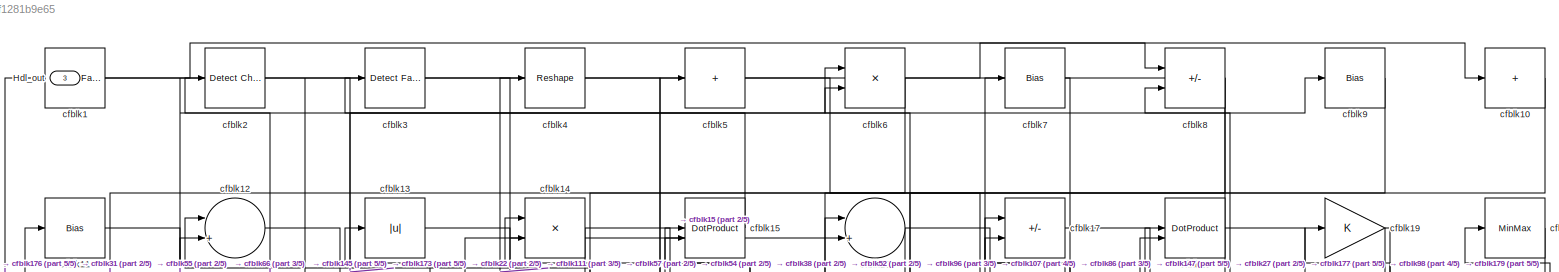
[diagram: root canvas - part 1/5, full width, top band]
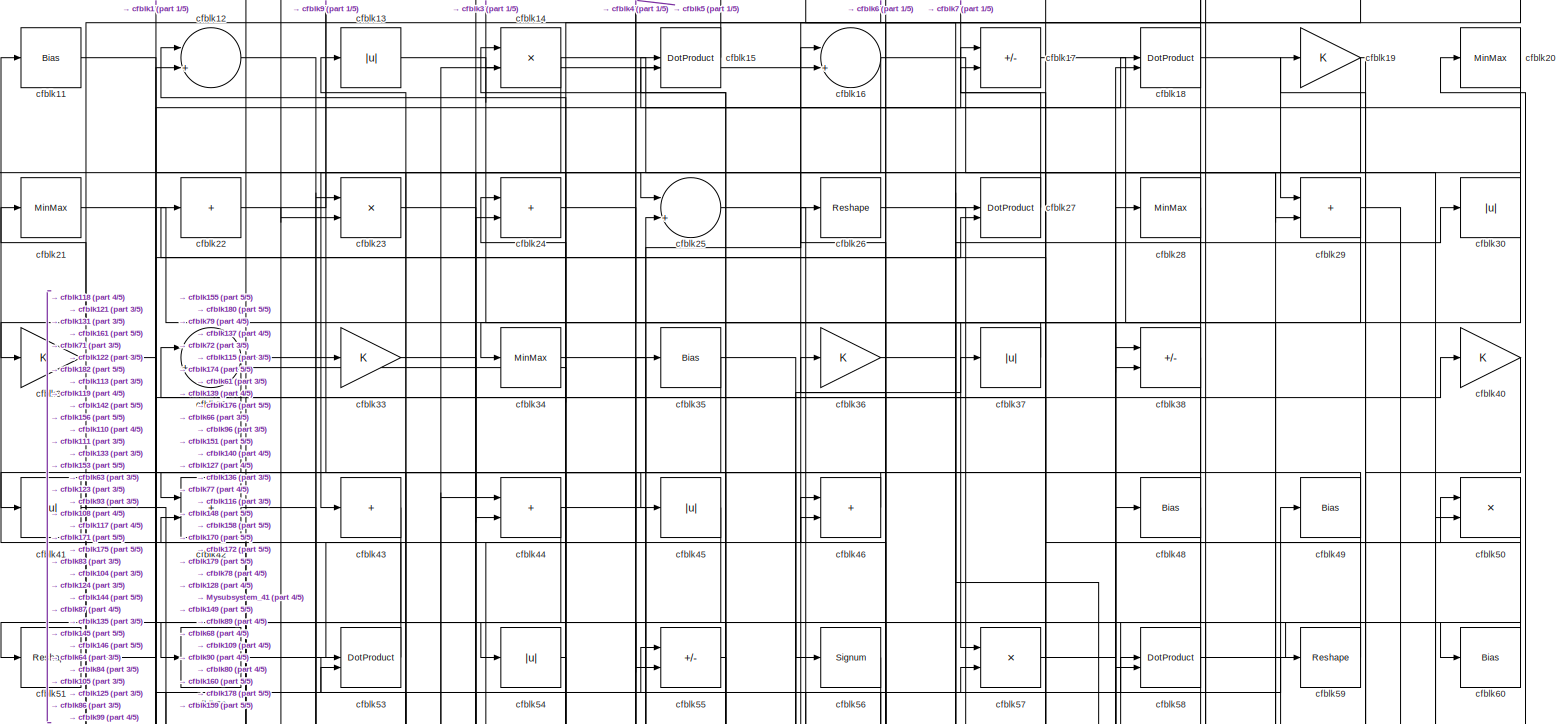
[diagram: root canvas - part 2/5, full width, top band]
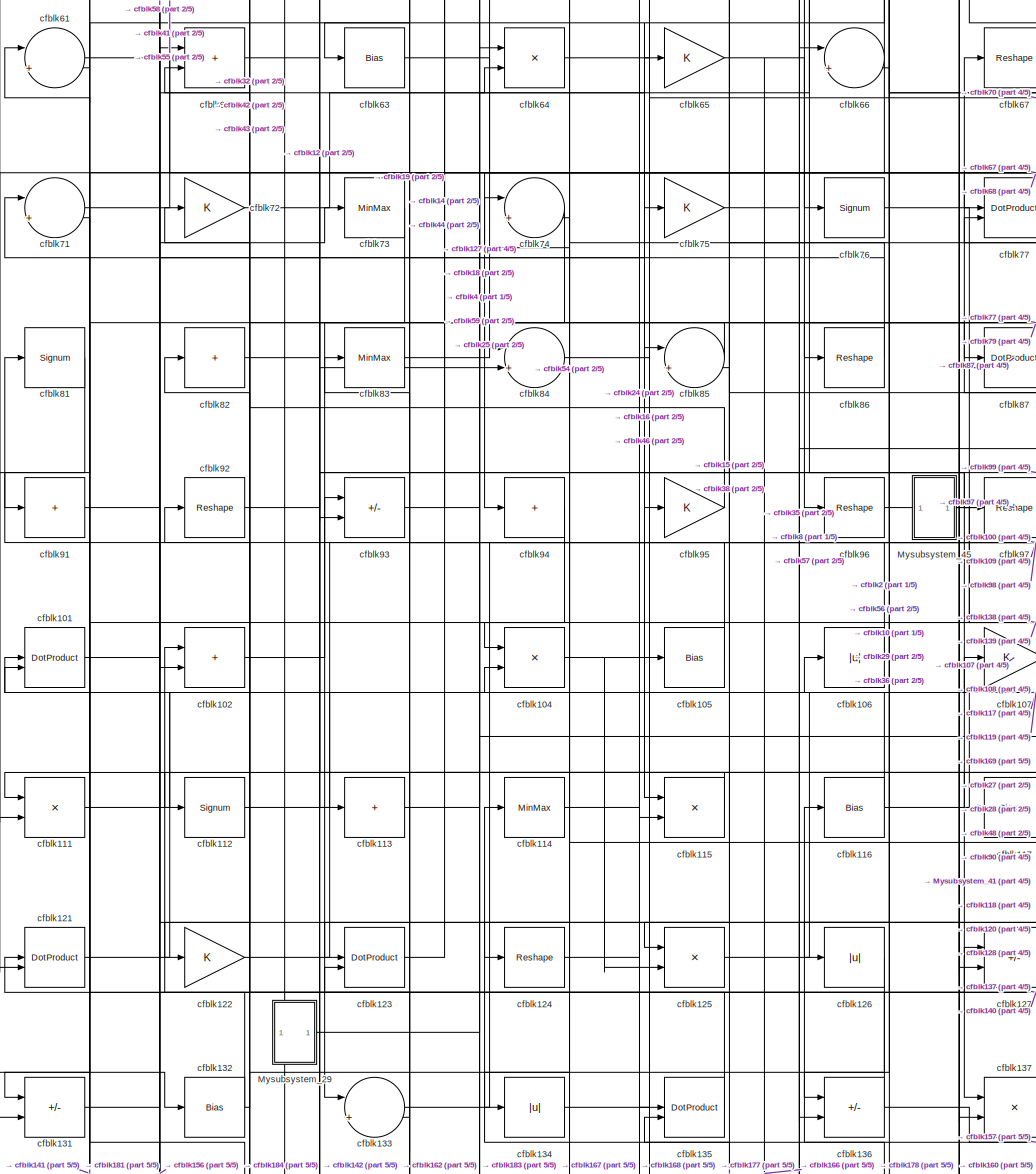
[diagram: root canvas - part 3/5, central region]
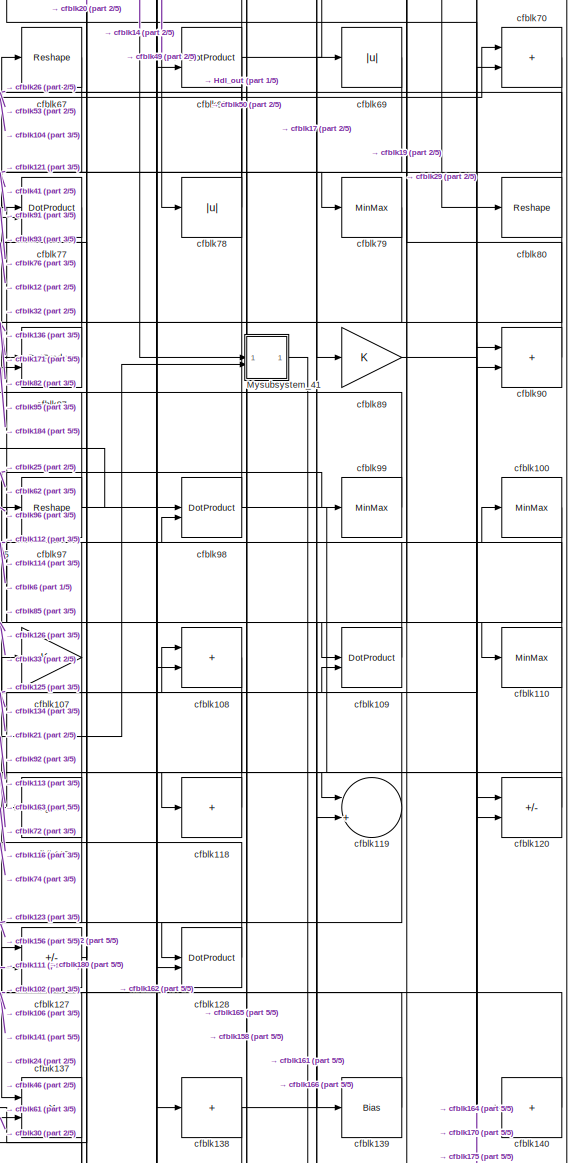
[diagram: root canvas - part 4/5, middle right region]
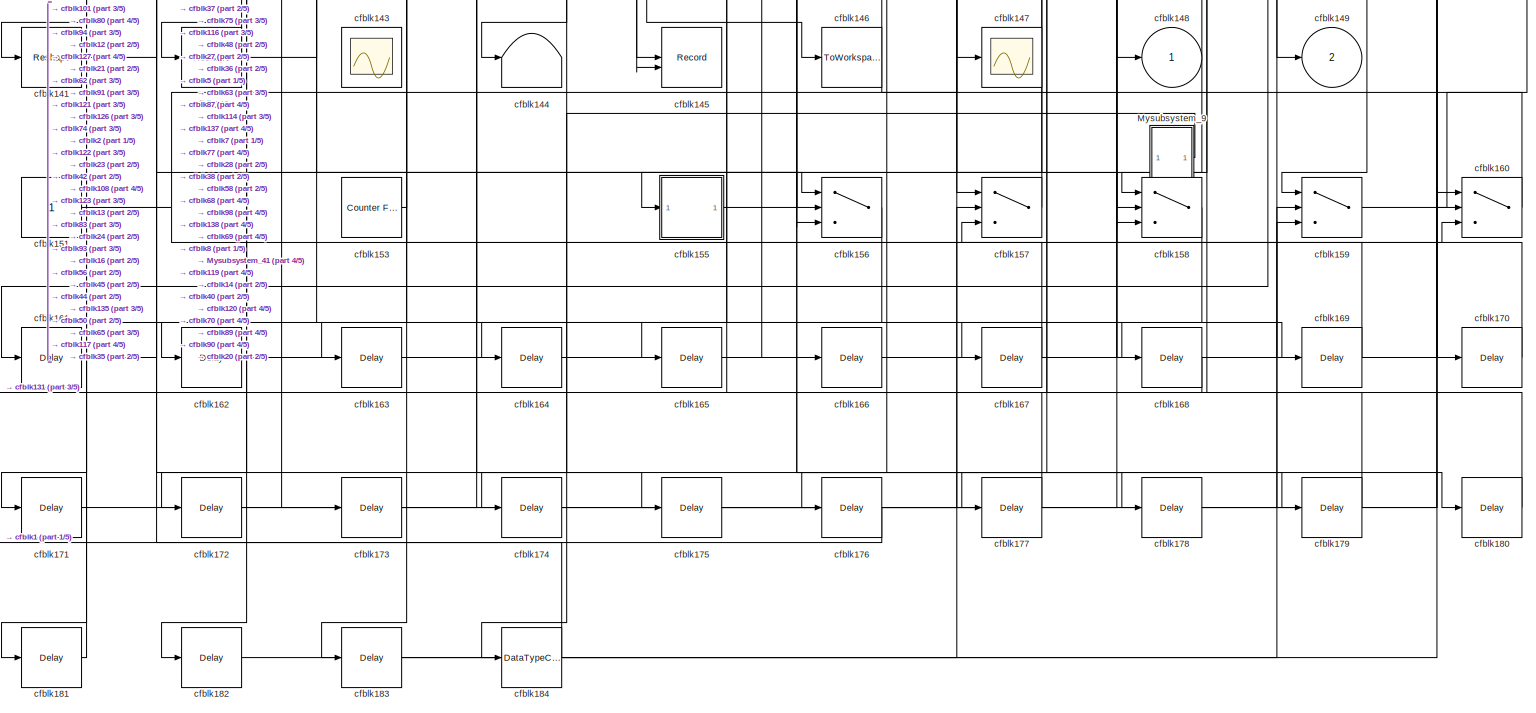
[diagram: root canvas - part 5/5, full width, bottom band]
MODEL slx_b7f1281b9e65
KIND model
CONFIG AbsTol = auto
CONFIG EnableMultiTasking = off
CONFIG FixedStep = auto
CONFIG MaxStep = auto
CONFIG MinStep = auto
CONFIG RelTol = 1e-3
CONFIG SampleTimeConstraint = Unconstrained
CONFIG SolverName = VariableStepAuto
CONFIG StartTime = 0.0
CONFIG StopTime = 10.0
BLOCK [Outport] Hdl_out
  OutDataTypeStr = uint8
  Port = 3
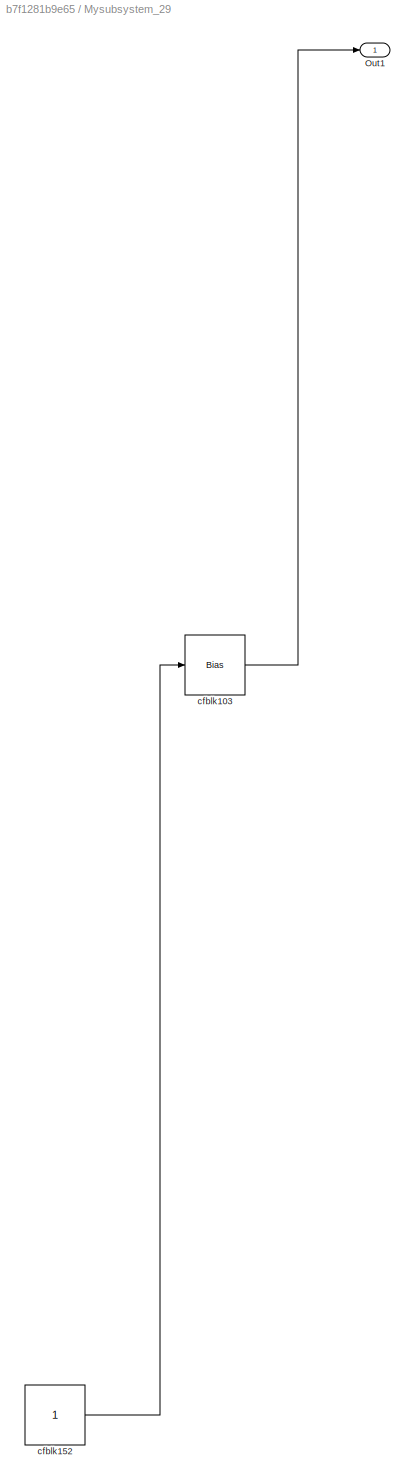
BLOCK [SubSystem] Mysubsystem_29
  RTWFcnName = Mysubsystem_29
  RTWFcnNameOpts = User specified
  RTWFileNameOpts = Use function name
  RTWSystemCode = Reusable function
  TreatAsAtomicUnit = on
BLOCK [Outport] Mysubsystem_29/Out1
BLOCK [Bias] Mysubsystem_29/cfblk103
  Bias = 0.0
  SaturateOnIntegerOverflow = off
BLOCK [Constant] Mysubsystem_29/cfblk152
  SampleTime = -1
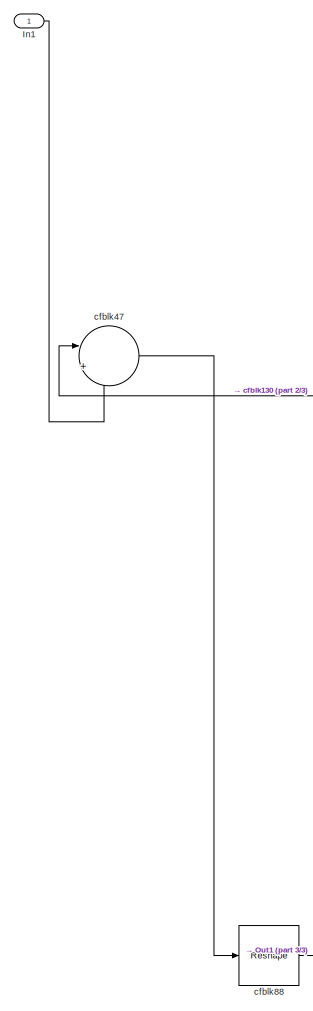
[diagram: Mysubsystem_41 - part 1/3, top right region]
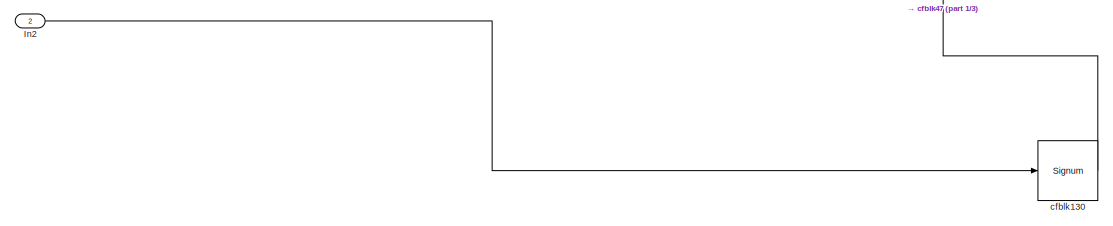
[diagram: Mysubsystem_41 - part 2/3, bottom center region]
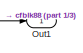
[diagram: Mysubsystem_41 - part 3/3, bottom left region]
BLOCK [SubSystem] Mysubsystem_41
  RTWFcnName = Mysubsystem_41
  RTWFcnNameOpts = User specified
  RTWFileNameOpts = Use function name
  RTWSystemCode = Reusable function
  TreatAsAtomicUnit = on
BLOCK [Inport] Mysubsystem_41/In1
BLOCK [Inport] Mysubsystem_41/In2
  Port = 2
BLOCK [Outport] Mysubsystem_41/Out1
BLOCK [Signum] Mysubsystem_41/cfblk130
BLOCK [Sum] Mysubsystem_41/cfblk47
  Inputs = |++
BLOCK [Reshape] Mysubsystem_41/cfblk88
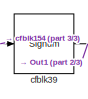
[diagram: Mysubsystem_45 - part 1/3, top right region]
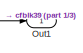
[diagram: Mysubsystem_45 - part 2/3, bottom center region]
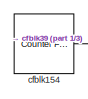
[diagram: Mysubsystem_45 - part 3/3, bottom left region]
BLOCK [SubSystem] Mysubsystem_45
  RTWFcnName = Mysubsystem_45
  RTWFcnNameOpts = User specified
  RTWFileNameOpts = Use function name
  RTWSystemCode = Reusable function
  TreatAsAtomicUnit = on
BLOCK [Outport] Mysubsystem_45/Out1
BLOCK [Reference] Mysubsystem_45/cfblk154  REF=hdlsllib/Sources/Counter
Free-Running
  SourceBlock = hdlsllib/Sources/Counter\nFree-Running
  SourceType = Counter Free-Running
BLOCK [Signum] Mysubsystem_45/cfblk39
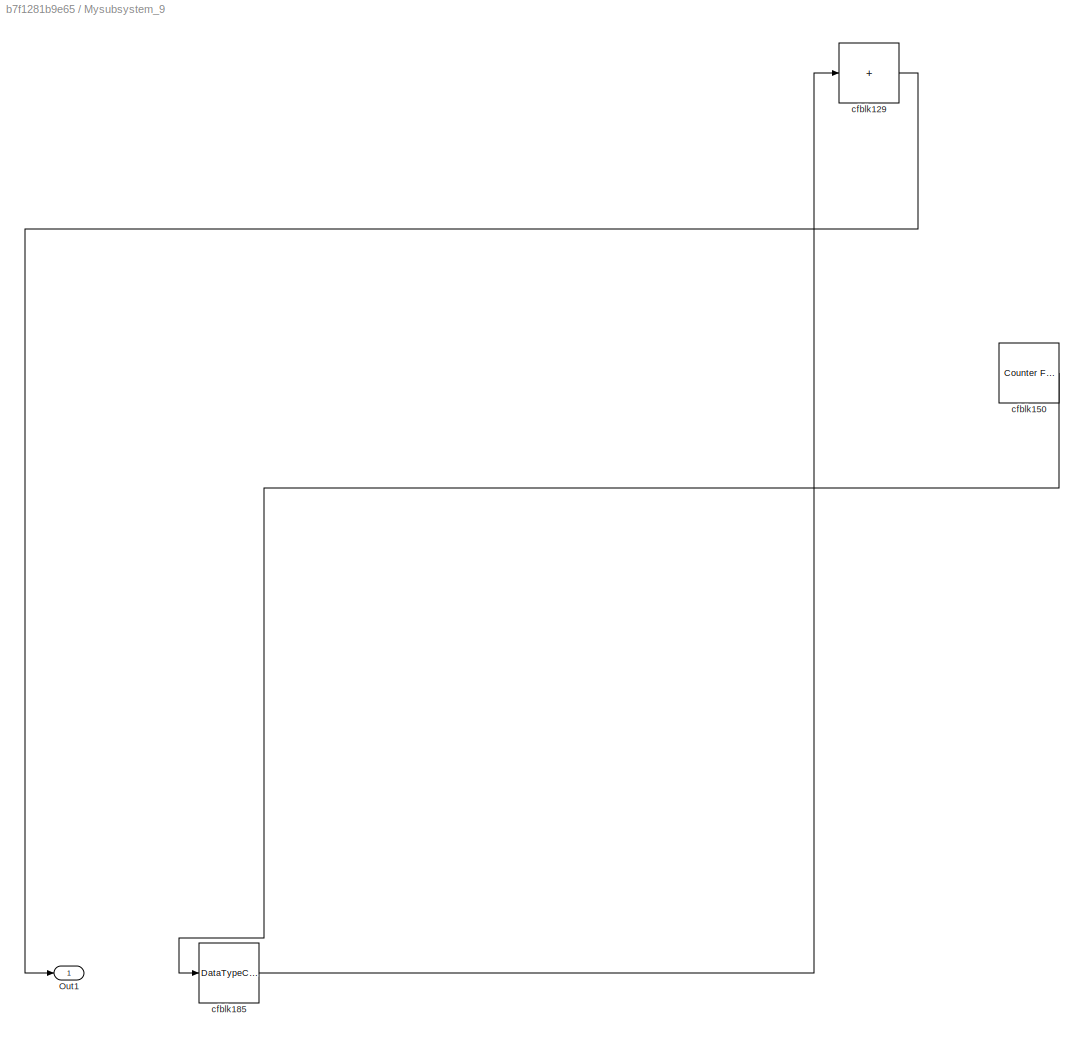
BLOCK [SubSystem] Mysubsystem_9
  RTWFcnName = Mysubsystem_9
  RTWFcnNameOpts = User specified
  RTWFileNameOpts = Use function name
  RTWSystemCode = Reusable function
  TreatAsAtomicUnit = on
BLOCK [Outport] Mysubsystem_9/Out1
BLOCK [Sum] Mysubsystem_9/cfblk129
  IconShape = rectangular
  Inputs = +
BLOCK [Reference] Mysubsystem_9/cfblk150  REF=hdlsllib/Sources/Counter
Free-Running
  SourceBlock = hdlsllib/Sources/Counter\nFree-Running
  SourceType = Counter Free-Running
BLOCK [DataTypeConversion] Mysubsystem_9/cfblk185
  OutDataTypeStr = uint8
  RndMeth = Floor
  SaturateOnIntegerOverflow = off
BLOCK [Reference] cfblk1  REF=hdlsllib/Logic and Bit
Operations/Detect Fall
Negative
  SourceBlock = hdlsllib/Logic and Bit\nOperations/Detect Fall\nNegative
  SourceType = Detect Fall Negative
BLOCK [Sum] cfblk10
  IconShape = rectangular
  Inputs = +
  OutDataTypeStr = uint8
BLOCK [MinMax] cfblk100
  OutDataTypeStr = uint8
BLOCK [DotProduct] cfblk101
  OutDataTypeStr = uint8
BLOCK [Sum] cfblk102
  IconShape = rectangular
  OutDataTypeStr = uint8
BLOCK [Product] cfblk104
  Inputs = */
  OutDataTypeStr = uint8
  RndMeth = Zero
  SaturateOnIntegerOverflow = on
BLOCK [Bias] cfblk105
  Bias = 0.0
  SaturateOnIntegerOverflow = off
BLOCK [Abs] cfblk106
  OutDataTypeStr = uint8
  SaturateOnIntegerOverflow = off
BLOCK [Gain] cfblk107
  OutDataTypeStr = uint8
BLOCK [Sum] cfblk108
  IconShape = rectangular
  OutDataTypeStr = uint8
BLOCK [DotProduct] cfblk109
  OutDataTypeStr = uint8
BLOCK [Bias] cfblk11
  Bias = 0.0
  SaturateOnIntegerOverflow = off
BLOCK [MinMax] cfblk110
  OutDataTypeStr = uint8
BLOCK [Product] cfblk111
  Inputs = */
  OutDataTypeStr = uint8
  RndMeth = Zero
  SaturateOnIntegerOverflow = on
BLOCK [Signum] cfblk112
BLOCK [Sum] cfblk113
  IconShape = rectangular
  Inputs = +
  OutDataTypeStr = uint8
BLOCK [MinMax] cfblk114
  OutDataTypeStr = uint8
BLOCK [Product] cfblk115
  Inputs = */
  OutDataTypeStr = uint8
  RndMeth = Zero
  SaturateOnIntegerOverflow = on
BLOCK [Bias] cfblk116
  Bias = 0.0
  SaturateOnIntegerOverflow = off
BLOCK [Signum] cfblk117
BLOCK [Sum] cfblk118
  IconShape = rectangular
  Inputs = +
  OutDataTypeStr = uint8
BLOCK [Sum] cfblk119
  Inputs = |++
  OutDataTypeStr = uint8
BLOCK [Sum] cfblk12
  Inputs = |++
  OutDataTypeStr = uint8
BLOCK [Sum] cfblk120
  IconShape = rectangular
  Inputs = +-
  OutDataTypeStr = uint8
BLOCK [DotProduct] cfblk121
  OutDataTypeStr = uint8
BLOCK [Gain] cfblk122
  OutDataTypeStr = uint8
BLOCK [DotProduct] cfblk123
  OutDataTypeStr = uint8
BLOCK [Reshape] cfblk124
BLOCK [Product] cfblk125
  Inputs = */
  OutDataTypeStr = uint8
  RndMeth = Zero
  SaturateOnIntegerOverflow = on
BLOCK [Abs] cfblk126
  OutDataTypeStr = uint8
  SaturateOnIntegerOverflow = off
BLOCK [Sum] cfblk127
  IconShape = rectangular
  Inputs = +-
  OutDataTypeStr = uint8
BLOCK [DotProduct] cfblk128
  OutDataTypeStr = uint8
BLOCK [Abs] cfblk13
  OutDataTypeStr = uint8
  SaturateOnIntegerOverflow = off
BLOCK [Sum] cfblk131
  IconShape = rectangular
  Inputs = +-
  OutDataTypeStr = uint8
BLOCK [Bias] cfblk132
  Bias = 0.0
  SaturateOnIntegerOverflow = off
BLOCK [Sum] cfblk133
  Inputs = |++
  OutDataTypeStr = uint8
BLOCK [Abs] cfblk134
  OutDataTypeStr = uint8
  SaturateOnIntegerOverflow = off
BLOCK [DotProduct] cfblk135
  OutDataTypeStr = uint8
BLOCK [Sum] cfblk136
  IconShape = rectangular
  Inputs = +-
  OutDataTypeStr = uint8
BLOCK [Product] cfblk137
  Inputs = */
  OutDataTypeStr = uint8
  RndMeth = Zero
  SaturateOnIntegerOverflow = on
BLOCK [Sum] cfblk138
  IconShape = rectangular
  Inputs = +
  OutDataTypeStr = uint8
BLOCK [Bias] cfblk139
  Bias = 0.0
  SaturateOnIntegerOverflow = off
BLOCK [Product] cfblk14
  Inputs = */
  OutDataTypeStr = uint8
  RndMeth = Zero
  SaturateOnIntegerOverflow = on
BLOCK [Sum] cfblk140
  IconShape = rectangular
  Inputs = +
  OutDataTypeStr = uint8
BLOCK [Reshape] cfblk141
BLOCK [Reshape] cfblk142
BLOCK [Scope] cfblk143
  Floating = on
  NumInputPorts = 1
  ScopeSpecificationString = Simulink.scopes.TimeScopeBlockCfg('CurrentConfiguration', extmgr.ConfigurationSet(extmgr.Configuration('Core','General UI',true,'FigureColor',[0.156862745098039 0.156862745098039 0.156862745098039]),extmgr.Configuration('Core','Source UI',true),extmgr.Configuration('Sources','WiredSimulink',true,'DataLoggingVariableName','ScopeData1','DataLoggingSaveFormat','StructureWithTime','DataLoggingLimitDat...<+2713ch>
BLOCK [Terminator] cfblk144
BLOCK [Record] cfblk145
  CompatibilityTag = XY
  FileSettingsInternal = {"entries":[{"content":{"excelSettings":{"content":{},"type":"Streamout.ExcelSettings"}},"type":"Streamout.FileSettingStorage","uuid":""}],"packageUris":["http:\/\/schema.mathworks.com\/mf0\/streamout_blocks\/R2020a"],"version":"1.0"}
  Layout = [1 1]
  SignalsInternal = {"entries":[{"content":{"signals":[{"content":{"blockPath":[],"dimensions":[1],"domain":"","lineColor":"#a2142f","plots":[1],"port":1,"signalID":57290,"signalName":"cfblk2"},"type":"RecordBlkView.Signal","uuid":""},{"content":{"blockPath":[],"dimensions":[1],"domain":"","lineColor":"#139fff","plots":[1],"port":2,"signalID":57293,"signalName":"cfblk45"},"type":"RecordBlkView.Signal","uuid":""}]},"t...<+141ch>
  VisualizationBindings = {"xyplotplugin":{"info":[{"series":[{"bindingParametersList":[{"parameter":"X-Axis","signalID":57290,"signalName":"cfblk2"},{"parameter":"Y-Axis","signalID":57293,"signalName":"cfblk45"}],"seriesID":59070}],"subplotID":1}]}}
  st = -1
BLOCK [ToWorkspace] cfblk146
  MaxDataPoints = inf
  SampleTime = -1
  SaveFormat = Timeseries
  VariableName = simout
BLOCK [Scope] cfblk147
  Floating = off
  NumInputPorts = 1
  ScopeSpecificationString = Simulink.scopes.TimeScopeBlockCfg('CurrentConfiguration', extmgr.ConfigurationSet(extmgr.Configuration('Core','General UI',true),extmgr.Configuration('Core','Source UI',true),extmgr.Configuration('Sources','WiredSimulink',true,'DataLoggingVariableName','ScopeData2','DataLoggingSaveFormat','Array','DataLoggingLimitDataPoints',true,'DataLoggingDecimation','1'),extmgr.Configuration('Visuals','Time Do...<+868ch>
BLOCK [Outport] cfblk148
  OutDataTypeStr = uint8
  VectorParamsAs1DForOutWhenUnconnected = off
BLOCK [Outport] cfblk149
  OutDataTypeStr = uint8
  Port = 2
  VectorParamsAs1DForOutWhenUnconnected = off
BLOCK [DotProduct] cfblk15
  OutDataTypeStr = uint8
BLOCK [Constant] cfblk151
  OutDataTypeStr = uint8
  SampleTime = -1
BLOCK [Reference] cfblk153  REF=hdlsllib/Sources/Counter
Free-Running
  SourceBlock = hdlsllib/Sources/Counter\nFree-Running
  SourceType = Counter Free-Running
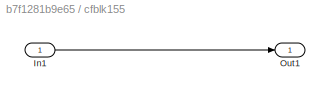
BLOCK [SubSystem] cfblk155
  LibrarySourceBlock = hdlsllib/Ports &\nSubsystems/Subsystem
BLOCK [Inport] cfblk155/In1
BLOCK [Outport] cfblk155/Out1
BLOCK [Switch] cfblk156
  InputSameDT = off
  OutDataTypeStr = uint8
  SaturateOnIntegerOverflow = off
BLOCK [Switch] cfblk157
  InputSameDT = off
  OutDataTypeStr = uint8
  SaturateOnIntegerOverflow = off
BLOCK [Switch] cfblk158
  InputSameDT = off
  OutDataTypeStr = uint8
  SaturateOnIntegerOverflow = off
BLOCK [Switch] cfblk159
  InputSameDT = off
  OutDataTypeStr = uint8
  SaturateOnIntegerOverflow = off
BLOCK [Sum] cfblk16
  Inputs = |++
  OutDataTypeStr = uint8
BLOCK [Switch] cfblk160
  InputSameDT = off
  OutDataTypeStr = uint8
  SaturateOnIntegerOverflow = off
BLOCK [Delay] cfblk161
  InputPortMap = u0
  SampleTime = 1
BLOCK [Delay] cfblk162
  InputPortMap = u0
  SampleTime = 1
BLOCK [Delay] cfblk163
  InputPortMap = u0
  SampleTime = 1
BLOCK [Delay] cfblk164
  InputPortMap = u0
  SampleTime = 1
BLOCK [Delay] cfblk165
  InputPortMap = u0
  SampleTime = 1
BLOCK [Delay] cfblk166
  InputPortMap = u0
  SampleTime = 1
BLOCK [Delay] cfblk167
  InputPortMap = u0
  SampleTime = 1
BLOCK [Delay] cfblk168
  InputPortMap = u0
  SampleTime = 1
BLOCK [Delay] cfblk169
  InputPortMap = u0
  SampleTime = 1
BLOCK [Sum] cfblk17
  IconShape = rectangular
  Inputs = +-
  OutDataTypeStr = uint8
BLOCK [Delay] cfblk170
  InputPortMap = u0
  SampleTime = 1
BLOCK [Delay] cfblk171
  InputPortMap = u0
  SampleTime = 1
BLOCK [Delay] cfblk172
  InputPortMap = u0
  SampleTime = 1
BLOCK [Delay] cfblk173
  InputPortMap = u0
  SampleTime = 1
BLOCK [Delay] cfblk174
  InputPortMap = u0
  SampleTime = 1
BLOCK [Delay] cfblk175
  InputPortMap = u0
  SampleTime = 1
BLOCK [Delay] cfblk176
  InputPortMap = u0
  SampleTime = 1
BLOCK [Delay] cfblk177
  InputPortMap = u0
  SampleTime = 1
BLOCK [Delay] cfblk178
  InputPortMap = u0
  SampleTime = 1
BLOCK [Delay] cfblk179
  InputPortMap = u0
  SampleTime = 1
BLOCK [DotProduct] cfblk18
  OutDataTypeStr = uint8
BLOCK [Delay] cfblk180
  InputPortMap = u0
  SampleTime = 1
BLOCK [Delay] cfblk181
  InputPortMap = u0
  SampleTime = 1
BLOCK [Delay] cfblk182
  InputPortMap = u0
  SampleTime = 1
BLOCK [Delay] cfblk183
  InputPortMap = u0
  SampleTime = 1
BLOCK [DataTypeConversion] cfblk184
  OutDataTypeStr = uint8
  RndMeth = Floor
  SaturateOnIntegerOverflow = off
BLOCK [Gain] cfblk19
  OutDataTypeStr = uint8
BLOCK [Reference] cfblk2  REF=simulink/Logic and Bit
Operations/Detect
Change
  LibrarySourceBlock = hdlsllib/Logic and Bit\nOperations/Detect\nChange
  SourceBlock = simulink/Logic and Bit\nOperations/Detect\nChange
  SourceType = Detect Change
BLOCK [MinMax] cfblk20
  OutDataTypeStr = uint8
BLOCK [MinMax] cfblk21
  OutDataTypeStr = uint8
BLOCK [Sum] cfblk22
  IconShape = rectangular
  Inputs = +
  OutDataTypeStr = uint8
BLOCK [Product] cfblk23
  Inputs = */
  OutDataTypeStr = uint8
  RndMeth = Zero
  SaturateOnIntegerOverflow = on
BLOCK [Sum] cfblk24
  IconShape = rectangular
  OutDataTypeStr = uint8
BLOCK [Sum] cfblk25
  Inputs = |++
  OutDataTypeStr = uint8
BLOCK [Reshape] cfblk26
BLOCK [DotProduct] cfblk27
  OutDataTypeStr = uint8
BLOCK [MinMax] cfblk28
  OutDataTypeStr = uint8
BLOCK [Sum] cfblk29
  IconShape = rectangular
  OutDataTypeStr = uint8
BLOCK [Reference] cfblk3  REF=hdlsllib/Logic and Bit
Operations/Detect Fall
Nonpositive
  SourceBlock = hdlsllib/Logic and Bit\nOperations/Detect Fall\nNonpositive
  SourceType = Detect Fall Nonpositive
BLOCK [Abs] cfblk30
  OutDataTypeStr = uint8
  SaturateOnIntegerOverflow = off
BLOCK [Gain] cfblk31
  OutDataTypeStr = uint8
BLOCK [Sum] cfblk32
  Inputs = |++
  OutDataTypeStr = uint8
BLOCK [Gain] cfblk33
  OutDataTypeStr = uint8
BLOCK [MinMax] cfblk34
  OutDataTypeStr = uint8
BLOCK [Bias] cfblk35
  Bias = 0.0
  SaturateOnIntegerOverflow = off
BLOCK [Gain] cfblk36
  OutDataTypeStr = uint8
BLOCK [Abs] cfblk37
  OutDataTypeStr = uint8
  SaturateOnIntegerOverflow = off
BLOCK [Sum] cfblk38
  IconShape = rectangular
  Inputs = +-
  OutDataTypeStr = uint8
BLOCK [Reshape] cfblk4
BLOCK [Gain] cfblk40
  OutDataTypeStr = uint8
BLOCK [Abs] cfblk41
  OutDataTypeStr = uint8
  SaturateOnIntegerOverflow = off
BLOCK [Sum] cfblk42
  IconShape = rectangular
  OutDataTypeStr = uint8
BLOCK [Sum] cfblk43
  IconShape = rectangular
  Inputs = +
  OutDataTypeStr = uint8
BLOCK [Sum] cfblk44
  IconShape = rectangular
  OutDataTypeStr = uint8
BLOCK [Abs] cfblk45
  OutDataTypeStr = uint8
  SaturateOnIntegerOverflow = off
BLOCK [Sum] cfblk46
  IconShape = rectangular
  OutDataTypeStr = uint8
BLOCK [Bias] cfblk48
  Bias = 0.0
  SaturateOnIntegerOverflow = off
BLOCK [Bias] cfblk49
  Bias = 0.0
  SaturateOnIntegerOverflow = off
BLOCK [Sum] cfblk5
  IconShape = rectangular
  Inputs = +
  OutDataTypeStr = uint8
BLOCK [Product] cfblk50
  Inputs = */
  OutDataTypeStr = uint8
  RndMeth = Zero
  SaturateOnIntegerOverflow = on
BLOCK [Reshape] cfblk51
BLOCK [Sum] cfblk52
  IconShape = rectangular
  Inputs = +
  OutDataTypeStr = uint8
BLOCK [DotProduct] cfblk53
  OutDataTypeStr = uint8
BLOCK [Abs] cfblk54
  OutDataTypeStr = uint8
  SaturateOnIntegerOverflow = off
BLOCK [Sum] cfblk55
  IconShape = rectangular
  Inputs = +-
  OutDataTypeStr = uint8
BLOCK [Signum] cfblk56
BLOCK [Product] cfblk57
  Inputs = */
  OutDataTypeStr = uint8
  RndMeth = Zero
  SaturateOnIntegerOverflow = on
BLOCK [DotProduct] cfblk58
  OutDataTypeStr = uint8
BLOCK [Reshape] cfblk59
BLOCK [Product] cfblk6
  Inputs = */
  OutDataTypeStr = uint8
  RndMeth = Zero
  SaturateOnIntegerOverflow = on
BLOCK [Bias] cfblk60
  Bias = 0.0
  SaturateOnIntegerOverflow = off
BLOCK [Sum] cfblk61
  Inputs = |++
  OutDataTypeStr = uint8
BLOCK [Sum] cfblk62
  IconShape = rectangular
  OutDataTypeStr = uint8
BLOCK [Bias] cfblk63
  Bias = 0.0
  SaturateOnIntegerOverflow = off
BLOCK [Product] cfblk64
  Inputs = */
  OutDataTypeStr = uint8
  RndMeth = Zero
  SaturateOnIntegerOverflow = on
BLOCK [Gain] cfblk65
  OutDataTypeStr = uint8
BLOCK [Sum] cfblk66
  Inputs = |++
  OutDataTypeStr = uint8
BLOCK [Reshape] cfblk67
BLOCK [DotProduct] cfblk68
  OutDataTypeStr = uint8
BLOCK [Abs] cfblk69
  OutDataTypeStr = uint8
  SaturateOnIntegerOverflow = off
BLOCK [Bias] cfblk7
  Bias = 0.0
  SaturateOnIntegerOverflow = off
BLOCK [Sum] cfblk70
  IconShape = rectangular
  OutDataTypeStr = uint8
BLOCK [Sum] cfblk71
  Inputs = |++
  OutDataTypeStr = uint8
BLOCK [Gain] cfblk72
  OutDataTypeStr = uint8
BLOCK [MinMax] cfblk73
  OutDataTypeStr = uint8
BLOCK [Sum] cfblk74
  Inputs = |++
  OutDataTypeStr = uint8
BLOCK [Gain] cfblk75
  OutDataTypeStr = uint8
BLOCK [Signum] cfblk76
BLOCK [DotProduct] cfblk77
  OutDataTypeStr = uint8
BLOCK [Abs] cfblk78
  OutDataTypeStr = uint8
  SaturateOnIntegerOverflow = off
BLOCK [MinMax] cfblk79
  OutDataTypeStr = uint8
BLOCK [Sum] cfblk8
  IconShape = rectangular
  Inputs = +-
  OutDataTypeStr = uint8
BLOCK [Reshape] cfblk80
BLOCK [Signum] cfblk81
BLOCK [Sum] cfblk82
  IconShape = rectangular
  Inputs = +
  OutDataTypeStr = uint8
BLOCK [MinMax] cfblk83
  OutDataTypeStr = uint8
BLOCK [Sum] cfblk84
  Inputs = |++
  OutDataTypeStr = uint8
BLOCK [Sum] cfblk85
  Inputs = |++
  OutDataTypeStr = uint8
BLOCK [Reshape] cfblk86
BLOCK [DotProduct] cfblk87
  OutDataTypeStr = uint8
BLOCK [Gain] cfblk89
  OutDataTypeStr = uint8
BLOCK [Bias] cfblk9
  Bias = 0.0
  SaturateOnIntegerOverflow = off
BLOCK [Sum] cfblk90
  IconShape = rectangular
  OutDataTypeStr = uint8
BLOCK [Sum] cfblk91
  IconShape = rectangular
  Inputs = +
  OutDataTypeStr = uint8
BLOCK [Reshape] cfblk92
BLOCK [Sum] cfblk93
  IconShape = rectangular
  Inputs = +-
  OutDataTypeStr = uint8
BLOCK [Sum] cfblk94
  IconShape = rectangular
  Inputs = +
  OutDataTypeStr = uint8
BLOCK [Gain] cfblk95
  OutDataTypeStr = uint8
BLOCK [Reshape] cfblk96
BLOCK [Reshape] cfblk97
BLOCK [DotProduct] cfblk98
  OutDataTypeStr = uint8
BLOCK [MinMax] cfblk99
  OutDataTypeStr = uint8
LINE Mysubsystem_29/cfblk103:1 -> Mysubsystem_29/Out1:1
LINE Mysubsystem_29/cfblk152:1 -> Mysubsystem_29/cfblk103:1
LINE Mysubsystem_29:1 -> cfblk64:1
LINE Mysubsystem_41/In1:1 -> Mysubsystem_41/cfblk47:2
LINE Mysubsystem_41/In2:1 -> Mysubsystem_41/cfblk130:1
LINE Mysubsystem_41/cfblk130:1 -> Mysubsystem_41/cfblk47:1
LINE Mysubsystem_41/cfblk47:1 -> Mysubsystem_41/cfblk88:1
LINE Mysubsystem_41/cfblk88:1 -> Mysubsystem_41/Out1:1
LINE Mysubsystem_41:1 -> cfblk161:1
LINE Mysubsystem_45/cfblk154:1 -> Mysubsystem_45/cfblk39:1
LINE Mysubsystem_45/cfblk39:1 -> Mysubsystem_45/Out1:1
LINE Mysubsystem_45:1 -> cfblk136:2
LINE Mysubsystem_9/cfblk129:1 -> Mysubsystem_9/Out1:1
LINE Mysubsystem_9/cfblk150:1 -> Mysubsystem_9/cfblk185:1
LINE Mysubsystem_9/cfblk185:1 -> Mysubsystem_9/cfblk129:1
LINE Mysubsystem_9:1 -> cfblk184:1
LINE cfblk100:1 -> cfblk126:1
NET cfblk101:1 -> cfblk64:2, cfblk73:1
LINE cfblk102:1 -> cfblk93:1
NET cfblk104:1 -> cfblk125:2, cfblk70:1
LINE cfblk105:1 -> cfblk83:1
LINE cfblk106:1 -> cfblk81:1
NET cfblk107:1 -> cfblk104:2, cfblk6:1
LINE cfblk108:1 -> cfblk163:1
LINE cfblk109:1 -> cfblk85:2
LINE cfblk10:1 -> cfblk86:1
NET cfblk110:1 -> cfblk128:2, cfblk53:1
NET cfblk111:1 -> cfblk127:2, cfblk18:1, cfblk4:1
NET cfblk112:1 -> cfblk100:1, cfblk84:2
NET cfblk113:1 -> Mysubsystem_41:2, cfblk59:1
LINE cfblk114:1 -> cfblk98:2
LINE cfblk115:1 -> cfblk111:1
NET cfblk116:1 -> cfblk18:2, cfblk71:2, cfblk90:2
NET cfblk117:1 -> cfblk156:3, cfblk92:1
LINE cfblk118:1 -> cfblk21:1
NET cfblk119:1 -> cfblk109:2, cfblk123:1, cfblk74:2
LINE cfblk11:1 -> cfblk25:1
LINE cfblk120:1 -> cfblk112:1
NET cfblk121:1 -> cfblk27:2, cfblk48:1, cfblk75:1
NET cfblk122:1 -> cfblk169:1, cfblk28:1
LINE cfblk123:1 -> cfblk44:1
LINE cfblk124:1 -> cfblk35:1
LINE cfblk125:1 -> cfblk108:1
LINE cfblk126:1 -> cfblk162:1
LINE cfblk127:1 -> cfblk17:1
LINE cfblk128:1 -> cfblk74:1
NET cfblk12:1 -> cfblk113:1, cfblk119:1
LINE cfblk131:1 -> cfblk58:1
NET cfblk132:1 -> cfblk101:1, cfblk62:2
LINE cfblk133:1 -> cfblk85:1
LINE cfblk134:1 -> cfblk107:1
LINE cfblk135:1 -> cfblk82:1
NET cfblk136:1 -> cfblk32:1, cfblk42:2
NET cfblk137:1 -> cfblk102:1, cfblk172:1
NET cfblk138:1 -> cfblk165:1, cfblk69:1
NET cfblk139:1 -> cfblk106:1, cfblk46:2
LINE cfblk13:1 -> cfblk16:2
NET cfblk140:1 -> cfblk24:1, cfblk61:1
LINE cfblk141:1 -> cfblk127:1
NET cfblk142:1 -> cfblk121:1, cfblk23:1
NET cfblk14:1 -> Mysubsystem_41:1, cfblk149:1, cfblk17:2, cfblk43:1
NET cfblk151:1 -> cfblk160:3, cfblk27:1
LINE cfblk153:1 -> cfblk13:1
LINE cfblk155/In1:1 -> cfblk155/Out1:1
LINE cfblk155:1 -> cfblk37:1
LINE cfblk156:1 -> cfblk181:1
LINE cfblk157:1 -> cfblk114:1
LINE cfblk158:1 -> cfblk164:1
LINE cfblk159:1 -> cfblk20:1
LINE cfblk15:1 -> cfblk3:1
LINE cfblk160:1 -> cfblk116:1
LINE cfblk161:1 -> cfblk12:2
LINE cfblk162:1 -> cfblk98:1
LINE cfblk163:1 -> cfblk68:1
LINE cfblk164:1 -> cfblk120:1
LINE cfblk165:1 -> cfblk70:2
LINE cfblk166:1 -> cfblk119:2
LINE cfblk167:1 -> cfblk123:2
LINE cfblk168:1 -> cfblk131:2
LINE cfblk169:1 -> cfblk157:3
NET cfblk16:1 -> cfblk144:1, cfblk160:2, cfblk44:2
LINE cfblk170:1 -> cfblk38:1
LINE cfblk171:1 -> cfblk24:2
LINE cfblk172:1 -> cfblk58:2
LINE cfblk173:1 -> cfblk157:2
LINE cfblk174:1 -> cfblk159:2
LINE cfblk175:1 -> cfblk90:1
LINE cfblk176:1 -> cfblk1:1
LINE cfblk177:1 -> cfblk135:2
LINE cfblk178:1 -> cfblk50:2
LINE cfblk179:1 -> cfblk8:2
LINE cfblk17:1 -> cfblk89:1
LINE cfblk180:1 -> cfblk77:2
LINE cfblk181:1 -> cfblk101:2
LINE cfblk182:1 -> cfblk160:1
LINE cfblk183:1 -> cfblk159:3
NET cfblk184:1 -> cfblk62:1, cfblk87:2
LINE cfblk18:1 -> cfblk29:1
NET cfblk19:1 -> cfblk109:1, cfblk111:2, cfblk133:2, cfblk68:2
NET cfblk1:1 -> cfblk55:2, cfblk6:2, cfblk8:1
NET cfblk20:1 -> cfblk29:2, cfblk77:1
NET cfblk21:1 -> cfblk148:1, cfblk179:1
NET cfblk22:1 -> cfblk23:2, cfblk9:1
LINE cfblk23:1 -> cfblk175:1
LINE cfblk24:1 -> cfblk135:1
LINE cfblk25:1 -> cfblk137:1
LINE cfblk26:1 -> cfblk140:1
LINE cfblk27:1 -> cfblk7:1
LINE cfblk28:1 -> cfblk158:2
NET cfblk29:1 -> cfblk66:2, cfblk80:1
NET cfblk2:1 -> cfblk145:1, cfblk173:1
NET cfblk30:1 -> cfblk137:2, cfblk15:2
LINE cfblk31:1 -> cfblk45:1
NET cfblk32:1 -> cfblk131:1, cfblk33:1
NET cfblk33:1 -> cfblk108:2, cfblk117:1
LINE cfblk34:1 -> cfblk56:1
NET cfblk35:1 -> cfblk180:1, cfblk63:1
NET cfblk36:1 -> cfblk158:3, cfblk30:1
LINE cfblk37:1 -> cfblk34:1
NET cfblk38:1 -> cfblk104:1, cfblk125:1
LINE cfblk3:1 -> cfblk57:1
LINE cfblk40:1 -> cfblk159:1
NET cfblk41:1 -> cfblk66:1, cfblk79:1
LINE cfblk42:1 -> cfblk156:1
LINE cfblk43:1 -> cfblk122:1
NET cfblk44:1 -> cfblk146:1, cfblk51:1
NET cfblk45:1 -> cfblk145:2, cfblk182:1
LINE cfblk46:1 -> cfblk41:1
LINE cfblk48:1 -> cfblk176:1
NET cfblk49:1 -> cfblk42:1, cfblk78:1
LINE cfblk4:1 -> cfblk38:2
NET cfblk50:1 -> cfblk128:1, cfblk155:1
LINE cfblk51:1 -> cfblk40:1
LINE cfblk52:1 -> cfblk5:1
LINE cfblk53:1 -> cfblk11:1
LINE cfblk54:1 -> cfblk124:1
LINE cfblk55:1 -> cfblk105:1
NET cfblk56:1 -> cfblk115:1, cfblk174:1, cfblk61:2
LINE cfblk57:1 -> cfblk50:1
LINE cfblk58:1 -> cfblk60:1
LINE cfblk59:1 -> cfblk52:1
LINE cfblk5:1 -> cfblk147:1
LINE cfblk60:1 -> cfblk22:1
LINE cfblk61:1 -> cfblk102:2
NET cfblk62:1 -> cfblk115:2, cfblk99:1
LINE cfblk63:1 -> cfblk157:1
LINE cfblk64:1 -> cfblk16:1
NET cfblk65:1 -> cfblk166:1, cfblk76:1
NET cfblk66:1 -> cfblk2:1, cfblk94:1
NET cfblk67:1 -> cfblk134:1, cfblk91:1
NET cfblk68:1 -> cfblk121:2, cfblk49:1
LINE cfblk69:1 -> cfblk158:1
NET cfblk6:1 -> cfblk10:1, cfblk31:1
LINE cfblk70:1 -> cfblk93:2
LINE cfblk71:1 -> cfblk55:1
NET cfblk72:1 -> cfblk118:1, cfblk57:2
LINE cfblk73:1 -> cfblk133:1
LINE cfblk74:1 -> cfblk142:1
LINE cfblk75:1 -> cfblk178:1
LINE cfblk76:1 -> cfblk138:1
LINE cfblk77:1 -> cfblk136:1
LINE cfblk78:1 -> cfblk26:1
LINE cfblk79:1 -> cfblk95:1
LINE cfblk7:1 -> cfblk177:1
NET cfblk80:1 -> cfblk171:1, cfblk53:2
LINE cfblk81:1 -> cfblk132:1
LINE cfblk82:1 -> cfblk87:1
NET cfblk83:1 -> cfblk183:1, cfblk25:2
LINE cfblk84:1 -> cfblk46:1
LINE cfblk85:1 -> cfblk84:1
NET cfblk86:1 -> cfblk15:1, cfblk71:1
NET cfblk87:1 -> cfblk12:1, cfblk32:2
LINE cfblk89:1 -> cfblk170:1
LINE cfblk8:1 -> cfblk96:1
LINE cfblk90:1 -> cfblk19:1
LINE cfblk91:1 -> cfblk156:2
LINE cfblk92:1 -> cfblk97:1
NET cfblk93:1 -> cfblk14:2, cfblk167:1, cfblk168:1, cfblk65:1
LINE cfblk94:1 -> cfblk141:1
LINE cfblk95:1 -> cfblk72:1
NET cfblk96:1 -> cfblk139:1, cfblk36:1
NET cfblk97:1 -> cfblk110:1, cfblk67:1
NET cfblk98:1 -> Hdl_out:1, cfblk120:2
LINE cfblk99:1 -> cfblk14:1
LINE cfblk9:1 -> cfblk54:1
note: NET lines group one-source signal fan-out (src -> all destinations, sorted); 1:1 wires keep LINE
